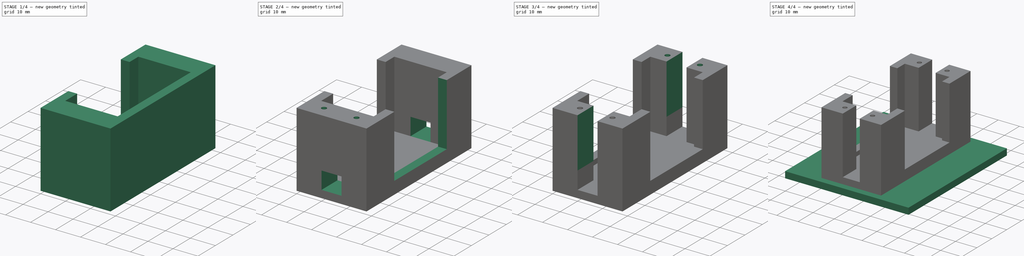
[diagram: build sequence overview — one tinted view per stage of 4, left to right]
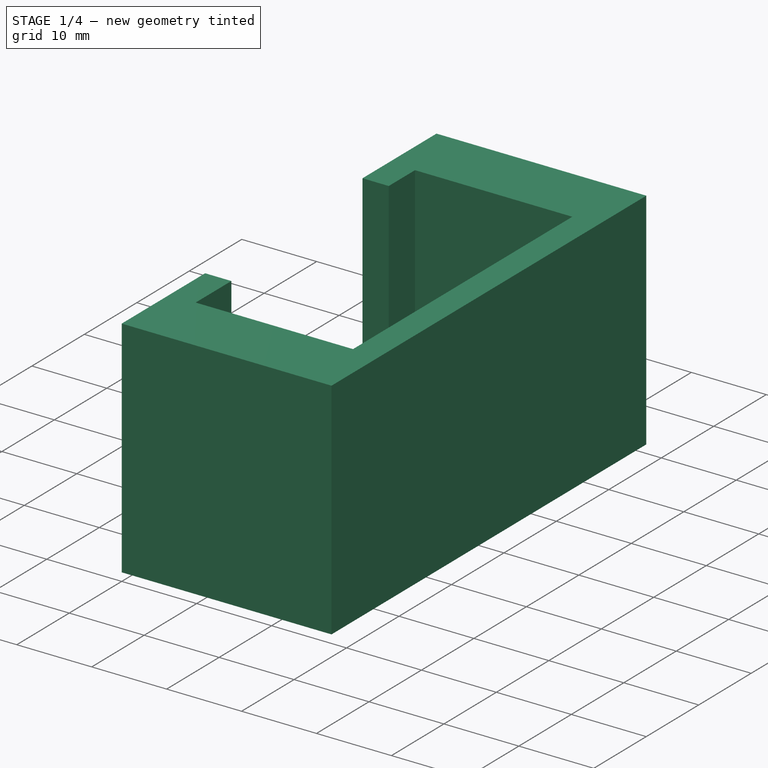
[diagram: stage 1 of 4 — iso view after this stage's code; geometry added in this stage tinted green]
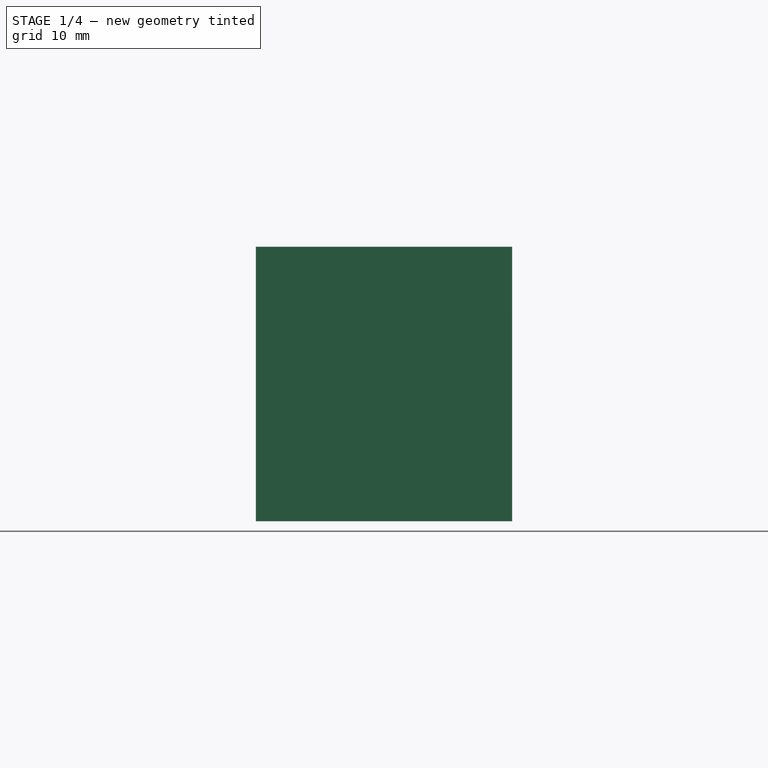
[diagram: stage 1 of 4 — front view after this stage's code; geometry added in this stage tinted green]
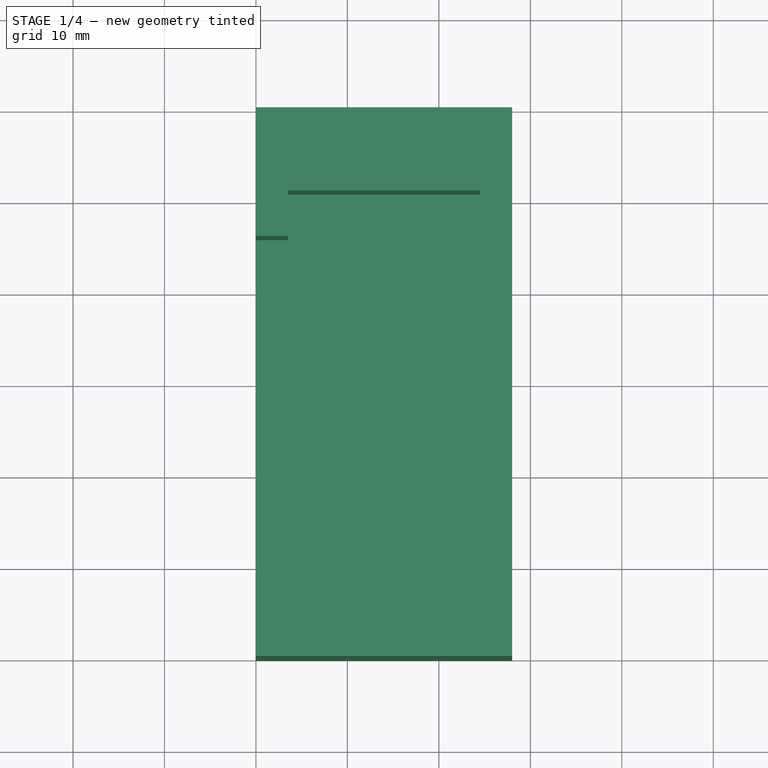
[diagram: stage 1 of 4 — top view after this stage's code; geometry added in this stage tinted green]
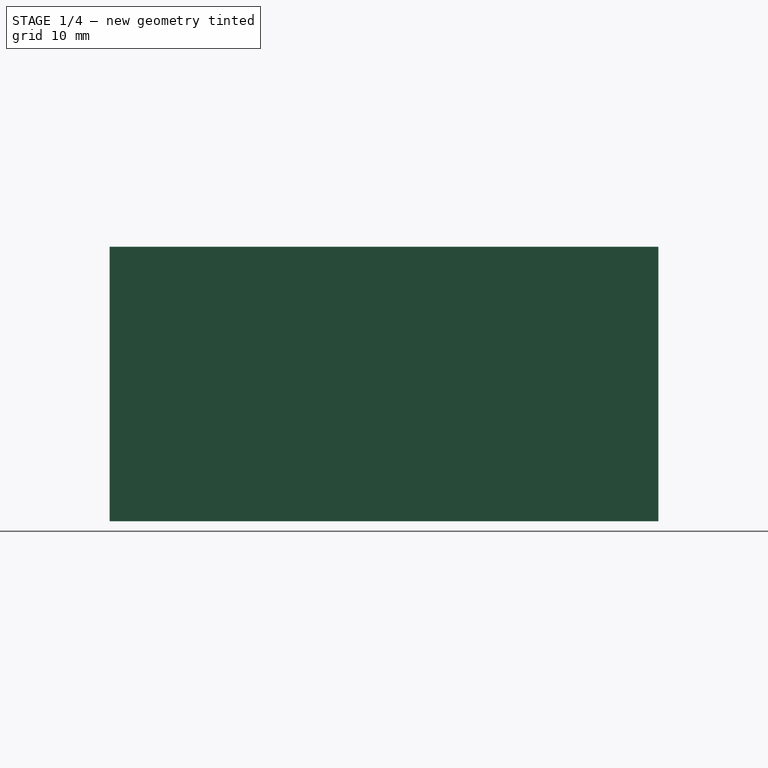
[diagram: stage 1 of 4 — right view after this stage's code; geometry added in this stage tinted green]
FCSTD DOCUMENT  (FreeCAD 0.19R19409 (Git))
Label: supp_servo_base_v1
License: All rights reserved
LicenseURL: http://en.wikipedia.org/wiki/All_rights_reserved
objects: Sketcher::SketchObject×11, App::MeasureDistance×10, PartDesign::Pocket×7, PartDesign::Pad×4, App::DocumentObjectGroup×2, PartDesign::CoordinateSystem×1, App::FeaturePython×1, PartDesign::Body×1, App::Part×1, Spreadsheet::Sheet×1
note: 35 computed .brp shape members not serialized (recipe doc carries the construction recipe); baked Part::Feature solids carry a one-line shape summary decoded from their .brp

FEATURE [Sketcher::SketchObject] Sketch
  MapMode = 5
  Support = -> [XY_Plane]
  sketch-geometry (4):
    g0: LineSegment StartX=0 StartY=0 StartZ=0 EndX=28 EndY=0 EndZ=0
    g1: LineSegment StartX=28 StartY=0 StartZ=0 EndX=28 EndY=60 EndZ=0
    g2: LineSegment StartX=28 StartY=60 StartZ=0 EndX=0 EndY=60 EndZ=0
    g3: LineSegment StartX=0 StartY=60 StartZ=0 EndX=0 EndY=0 EndZ=0
  constraints (11):
    c: Coincident(g0,g1)
    c: Coincident(g1,g2)
    c: Coincident(g2,g3)
    c: Coincident(g3,g0)
    c: Horizontal(g0)
    c: Horizontal(g2)
    c: Vertical(g1)
    c: Vertical(g3)
    c: Coincident(g0,g-1)
    c: DistanceY(g3,g3) = 60
    c: DistanceX(g0,g0) = 28
FEATURE [PartDesign::Pad] Pad
  Length = 30
  Length2 = 100
  Profile = -> Sketch
  Type = 0
FEATURE [Sketcher::SketchObject] Sketch001
  ExternalGeometry = -> [Pad]
  MapMode = 5
  Placement = pos=(0,0,30) rot=(0,0,1;0rad)
  Support = -> [Pad]
  sketch-geometry (12):
    g0: GeomPoint X=12.5 Y=60 Z=0
    g1: GeomPoint X=12.5 Y=0 Z=0
    g2: GeomPoint X=12.5 Y=30 Z=0
    g3: GeomPoint X=12.5 Y=50.9 Z=0
    g4: GeomPoint X=13.5 Y=9.1 Z=0
    g5: LineSegment StartX=3.5 StartY=9.1 StartZ=0 EndX=24.5 EndY=9.1 EndZ=0
    g6: LineSegment StartX=24.5 StartY=9.1 StartZ=0 EndX=24.5 EndY=50.9 EndZ=0
    g7: LineSegment StartX=24.5 StartY=50.9 StartZ=0 EndX=3.5 EndY=50.9 EndZ=0
    g8: LineSegment StartX=3.5 StartY=50.9 StartZ=0 EndX=3.5 EndY=9.1 EndZ=0
    g9: GeomPoint X=13.5 Y=9.1 Z=0
    g10: GeomPoint X=0 Y=9.5 Z=0
    g11: GeomPoint X=28 Y=9.5 Z=0
  constraints (25):
    c: PointOnObject(g0,g-3)
    c: DistanceX(g-3,g0) = 12.5
    c: PointOnObject(g1,g-4)
    c: DistanceX(g1,g-1) = -12.5
    c: DistanceY(g1,g2) = 30
    c: DistanceY(g3,g0) = 9.1
    c: DistanceY(g1,g4) = 9.1
    c: Coincident(g5,g6)
    c: Coincident(g6,g7)
    c: Coincident(g7,g8)
    c: Coincident(g8,g5)
    c: Horizontal(g5)
    c: Horizontal(g7)
    c: Vertical(g6)
    c: Vertical(g8)
    c: DistanceX(g5,g5) = 21
    c: DistanceY(g6,g6) = 41.8
    c: PointOnObject(g9,g5)
    c: DistanceX(g5,g9) = 10
    c: Coincident(g9,g4)
    c: PointOnObject(g10,g-5)
    c: DistanceY(g-1,g10) = 9.5
    c: DistanceX(g10,g5) = 3.5
    c: PointOnObject(g11,g-6)
    c: DistanceY(g-6,g11) = 9.5
FEATURE [PartDesign::Pocket] Pocket
  BaseFeature = -> Pad
  Length = 27
  Length2 = 100
  Profile = -> Sketch001
  Type = 0
FEATURE [Sketcher::SketchObject] Sketch002
  ExternalGeometry = -> [Pocket]
  MapMode = 5
  Placement = pos=(0,0,30) rot=(0,0,1;0rad)
  Support = -> [Pocket]
  sketch-geometry (4):
    g0: LineSegment StartX=3e-16 StartY=45.9 StartZ=0 EndX=3.5 EndY=45.9 EndZ=0
    g1: LineSegment StartX=3.5 StartY=45.9 StartZ=0 EndX=3.5 EndY=15.9 EndZ=0
    g2: LineSegment StartX=3.5 StartY=15.9 StartZ=0 EndX=4e-16 EndY=15.9 EndZ=0
    g3: LineSegment StartX=3e-16 StartY=15.9 StartZ=0 EndX=3e-16 EndY=45.9 EndZ=0
  constraints (12):
    c: Coincident(g0,g1)
    c: Coincident(g1,g2)
    c: Coincident(g2,g3)
    c: Coincident(g3,g0)
    c: Horizontal(g0)
    c: Horizontal(g2)
    c: Vertical(g1)
    c: Vertical(g3)
    c: PointOnObject(g0,g-4)
    c: DistanceY(g0,g-4) = 5
    c: DistanceX(g0,g0) = 3.5
    c: DistanceY(g1,g1) = 30
FEATURE [Sketcher::SketchObject] Sketch003
  ExternalGeometry = -> [Pocket]
  MapMode = 5
  Placement = pos=(0,0,30) rot=(0,0,1;0rad)
  Support = -> [Pocket]
  sketch-geometry (4):
    g0: LineSegment StartX=24.5 StartY=45.9 StartZ=0 EndX=28 EndY=45.9 EndZ=0
    g1: LineSegment StartX=28 StartY=45.9 StartZ=0 EndX=28 EndY=15.9 EndZ=0
    g2: LineSegment StartX=28 StartY=15.9 StartZ=0 EndX=24.5 EndY=15.9 EndZ=0
    g3: LineSegment StartX=24.5 StartY=15.9 StartZ=0 EndX=24.5 EndY=45.9 EndZ=0
  constraints (12):
    c: Coincident(g0,g1)
    c: Coincident(g1,g2)
    c: Coincident(g2,g3)
    c: Coincident(g3,g0)
    c: Horizontal(g0)
    c: Horizontal(g2)
    c: Vertical(g1)
    c: Vertical(g3)
    c: PointOnObject(g0,g-4)
    c: DistanceY(g1,g1) = 30
    c: DistanceY(g0,g-4) = 5
    c: DistanceX(g0,g0) = 3.5
FEATURE [PartDesign::Pocket] Pocket001
  BaseFeature = -> Pocket
  Length = 25
  Length2 = 100
  Profile = -> Sketch002
  Type = 0
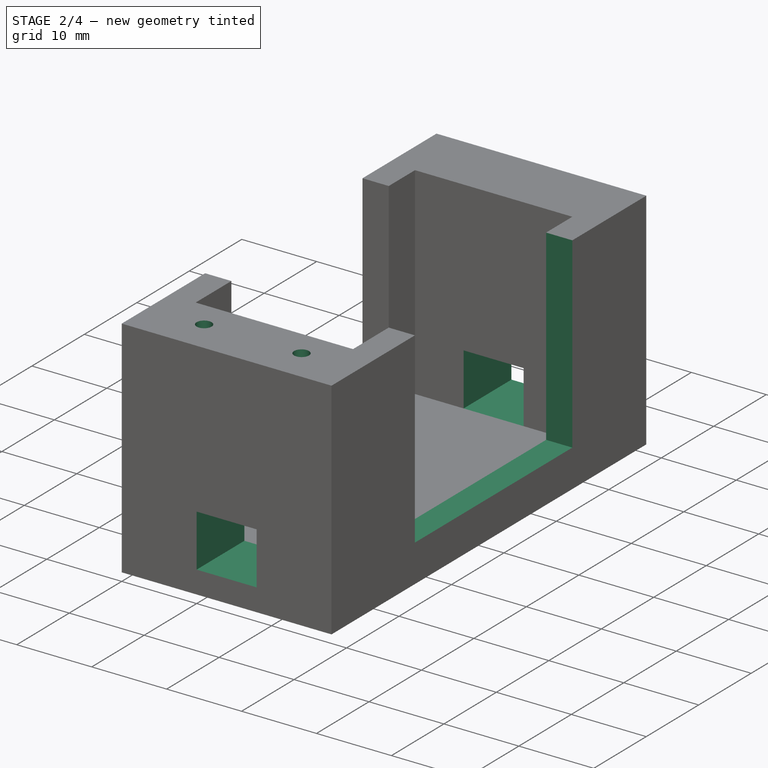
[diagram: stage 2 of 4 — iso view after this stage's code; geometry added in this stage tinted green]
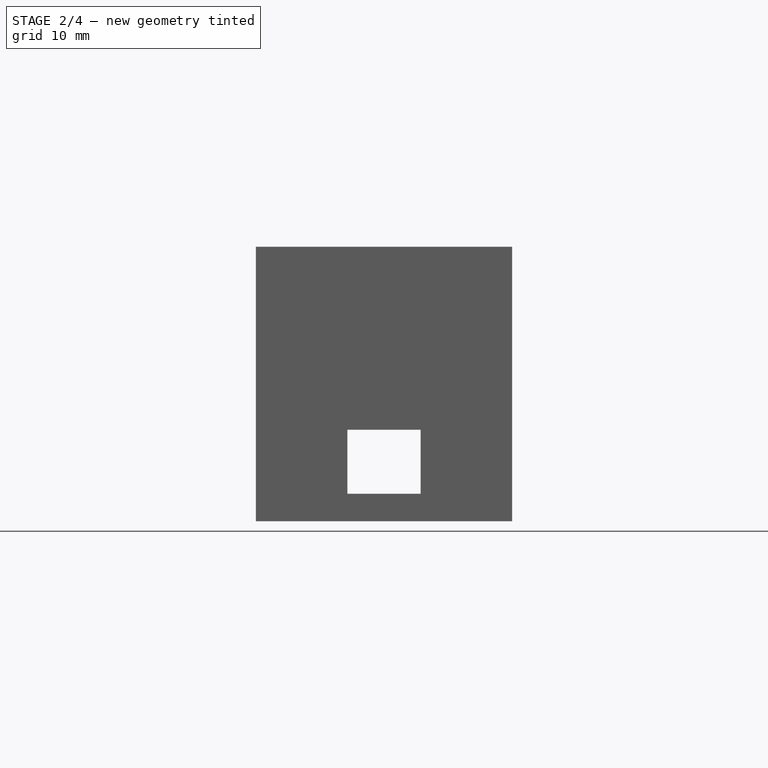
[diagram: stage 2 of 4 — front view after this stage's code; geometry added in this stage tinted green]
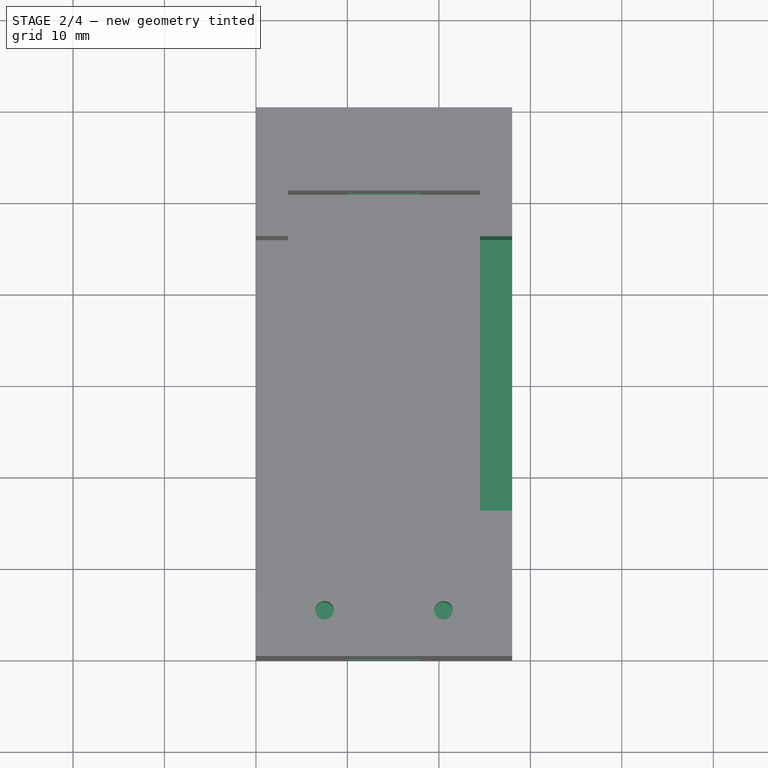
[diagram: stage 2 of 4 — top view after this stage's code; geometry added in this stage tinted green]
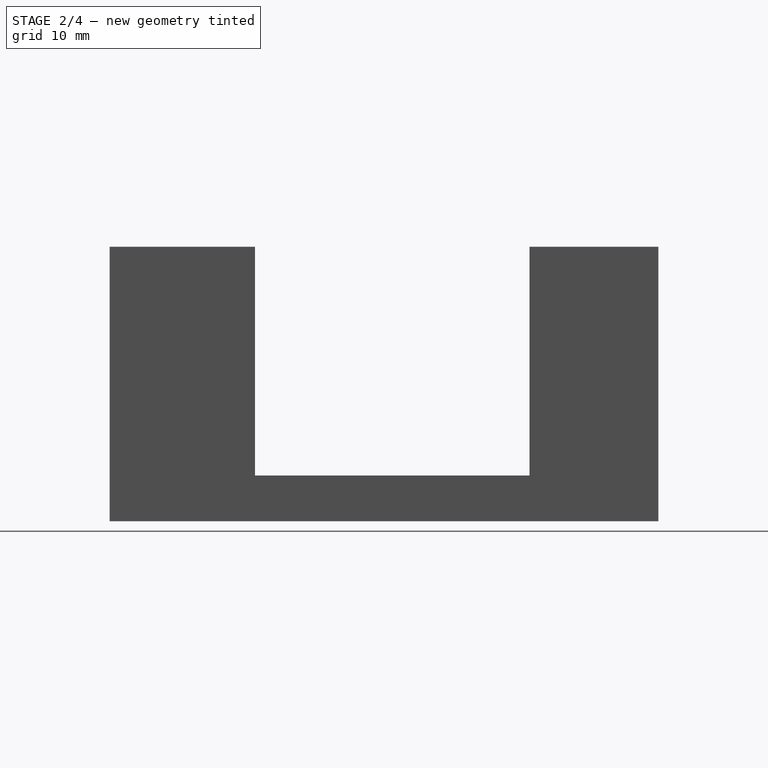
[diagram: stage 2 of 4 — right view after this stage's code; geometry added in this stage tinted green]
FEATURE [PartDesign::Pocket] Pocket002
  BaseFeature = -> Pocket001
  Length = 25
  Length2 = 100
  Profile = -> Sketch003
  Type = 0
FEATURE [Sketcher::SketchObject] Sketch006
  ExternalGeometry = -> [Pocket002]
  MapMode = 5
  Placement = pos=(0,60,0) rot=(0,0.707107,0.707107;3.14159rad)
  sketch-geometry (4):
    g0: LineSegment StartX=-18 StartY=10 StartZ=0 EndX=-10 EndY=10 EndZ=0
    g1: LineSegment StartX=-10 StartY=10 StartZ=0 EndX=-10 EndY=3 EndZ=0
    g2: LineSegment StartX=-10 StartY=3 StartZ=0 EndX=-18 EndY=3 EndZ=0
    g3: LineSegment StartX=-18 StartY=3 StartZ=0 EndX=-18 EndY=10 EndZ=0
  constraints (11):
    c: Coincident(g0,g1)
    c: Coincident(g1,g2)
    c: Coincident(g2,g3)
    c: Coincident(g3,g0)
    c: Horizontal(g0)
    c: Horizontal(g2)
    c: Vertical(g1)
    c: Vertical(g3)
    c: DistanceX(g2,g2) = 8
    c: DistanceY(g1,g1) = 7
    c: DistanceX(g-3,g2) = 6.5
FEATURE [PartDesign::Pocket] Pocket005
  BaseFeature = -> Pocket002
  Length = 5
  Length2 = 100
  Profile = -> Sketch006
  Type = 1
FEATURE [Sketcher::SketchObject] Sketch007
  ExternalGeometry = -> [Pocket005]
  MapMode = 5
  Placement = pos=(0,0,30) rot=(0,0,1;0rad)
  Support = -> [Pocket005]
  sketch-geometry (4):
    g0: GeomPoint X=0 Y=5 Z=0
    g1: GeomPoint X=28 Y=5 Z=0
    g2: Circle CenterX=7.5 CenterY=5 CenterZ=0 NormalX=0 NormalY=0 NormalZ=1 AngleXU=0 Radius=1
    g3: Circle CenterX=20.5 CenterY=5 CenterZ=0 NormalX=0 NormalY=0 NormalZ=1 AngleXU=0 Radius=1
  constraints (8):
    c: PointOnObject(g0,g-2)
    c: DistanceY(g-1,g0) = 5
    c: PointOnObject(g1,g-3)
    c: DistanceY(g-3,g1) = 5
    c: Radius(g2) = 1
    c: Radius(g3) = 1
    c: DistanceX(g0,g2) = 7.5
    c: DistanceX(g3,g1) = 7.5
FEATURE [Sketcher::SketchObject] Sketch008
  ExternalGeometry = -> [Pocket005]
  MapMode = 5
  Placement = pos=(0,0,30) rot=(0,0,1;0rad)
  Support = -> [Pocket005]
  sketch-geometry (4):
    g0: GeomPoint X=0 Y=55 Z=0
    g1: GeomPoint X=28 Y=55 Z=0
    g2: Circle CenterX=7.5 CenterY=55 CenterZ=0 NormalX=0 NormalY=0 NormalZ=1 AngleXU=0 Radius=1
    g3: Circle CenterX=20.5 CenterY=55 CenterZ=0 NormalX=0 NormalY=0 NormalZ=1 AngleXU=0 Radius=1
  constraints (8):
    c: PointOnObject(g0,g-2)
    c: DistanceY(g0,g-3) = 5
    c: PointOnObject(g1,g-4)
    c: DistanceY(g1,g-4) = 5
    c: Radius(g2) = 1
    c: DistanceX(g0,g2) = 7.5
    c: Radius(g3) = 1
    c: DistanceX(g3,g1) = 7.5
FEATURE [PartDesign::Pocket] Pocket006
  BaseFeature = -> Pocket005
  Length = 7
  Length2 = 100
  Profile = -> Sketch007
  Type = 0
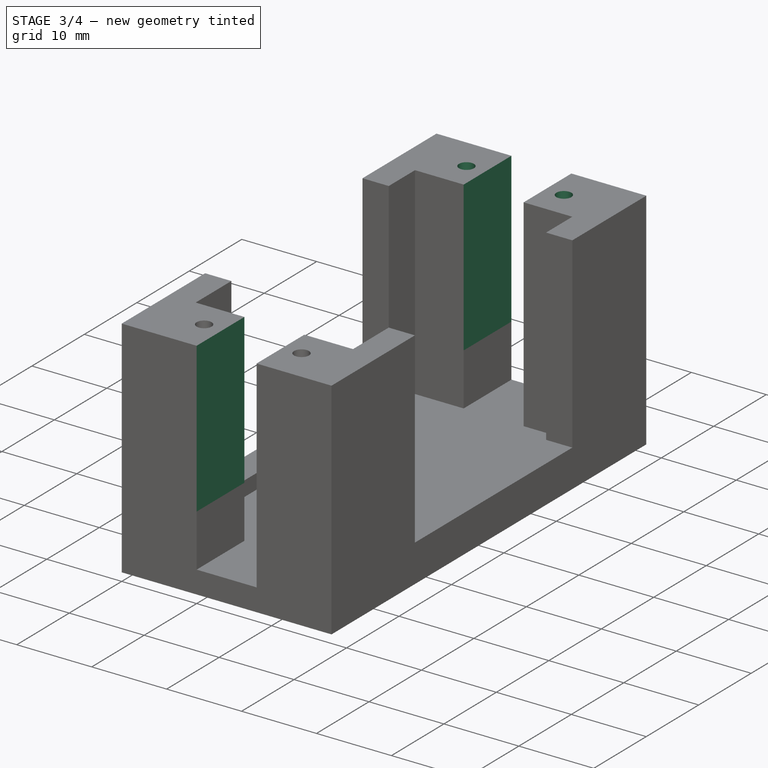
[diagram: stage 3 of 4 — iso view after this stage's code; geometry added in this stage tinted green]
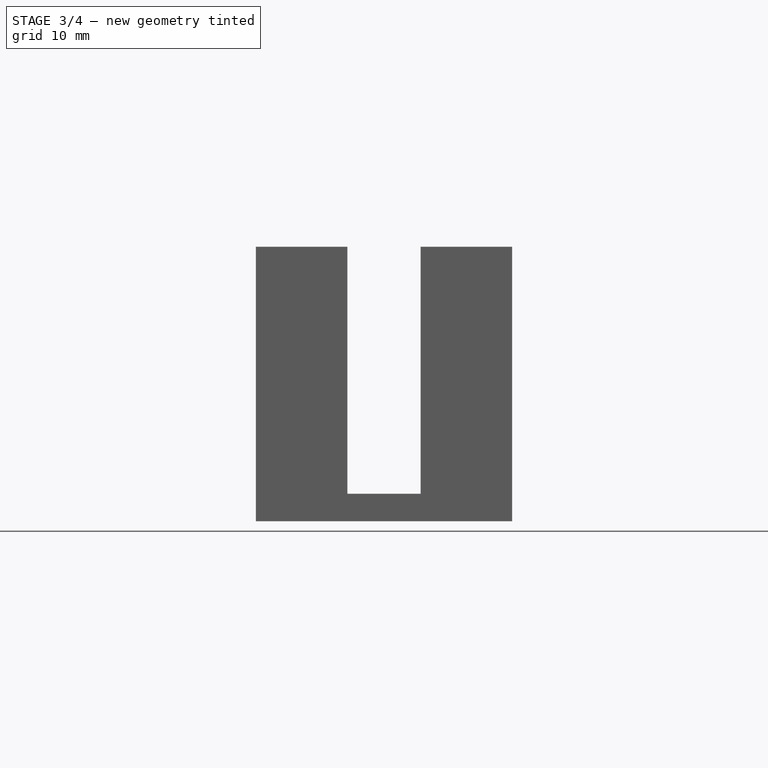
[diagram: stage 3 of 4 — front view after this stage's code; geometry added in this stage tinted green]
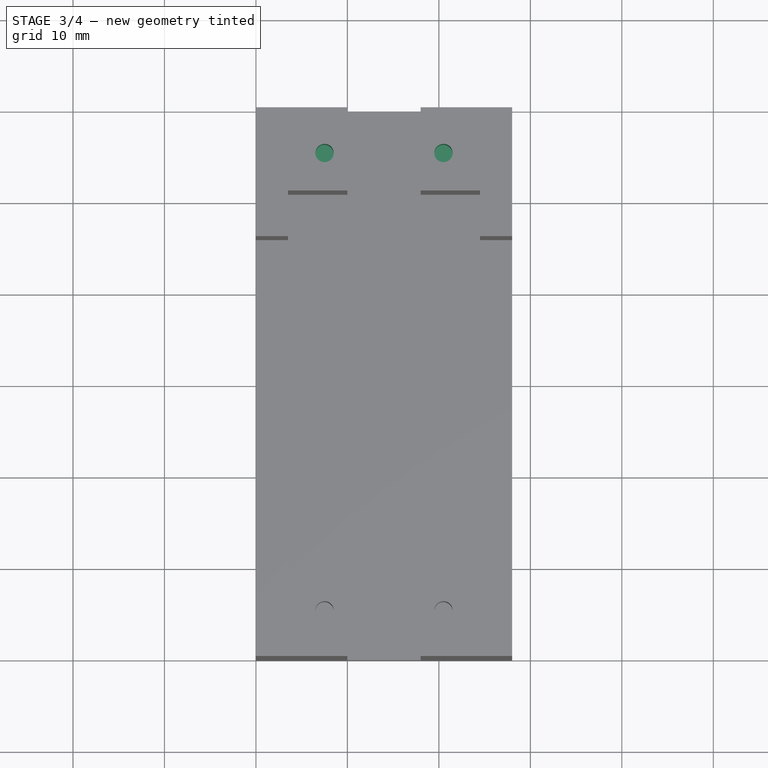
[diagram: stage 3 of 4 — top view after this stage's code; geometry added in this stage tinted green]
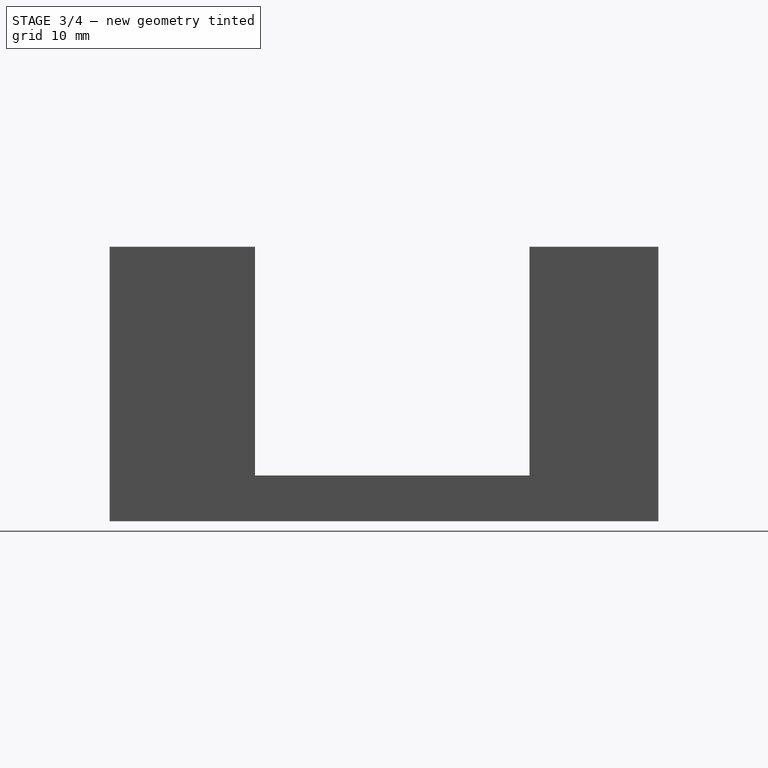
[diagram: stage 3 of 4 — right view after this stage's code; geometry added in this stage tinted green]
FEATURE [PartDesign::Pocket] Pocket007
  BaseFeature = -> Pocket006
  Length = 7
  Length2 = 100
  Profile = -> Sketch008
  Type = 0
FEATURE [App::DocumentObjectGroup] Parts
FEATURE [PartDesign::CoordinateSystem] LCS_Origin
  AttacherType = Attacher::AttachEngine3D
  MapMode = 2
  Support = -> [X_Axis001]
FEATURE [App::DocumentObjectGroup] Constraints
FEATURE [App::FeaturePython] Variables  # WARN: FeaturePython — macro-defined, semantics opaque (R4)
  Visibility1 = true
FEATURE [Sketcher::SketchObject] Sketch009
  ExternalGeometry = -> [Pocket007]
  MapMode = 5
  Placement = pos=(0,0,0) rot=(1,0,0;1.5708rad)
  Support = -> [Pocket007]
  sketch-geometry (4):
    g0: LineSegment StartX=10 StartY=30 StartZ=0 EndX=18 EndY=30 EndZ=0
    g1: LineSegment StartX=18 StartY=30 StartZ=0 EndX=18 EndY=10 EndZ=0
    g2: LineSegment StartX=18 StartY=10 StartZ=0 EndX=10 EndY=10 EndZ=0
    g3: LineSegment StartX=10 StartY=10 StartZ=0 EndX=10 EndY=30 EndZ=0
  constraints (11):
    c: Coincident(g0,g1)
    c: Coincident(g1,g2)
    c: Coincident(g2,g3)
    c: Coincident(g3,g0)
    c: Horizontal(g0)
    c: Horizontal(g2)
    c: Vertical(g1)
    c: Vertical(g3)
    c: Coincident(g2,g-3)
    c: DistanceX(g2,g2) = 8
    c: DistanceY(g3,g3) = 20
FEATURE [PartDesign::Pocket] Pocket008
  BaseFeature = -> Pocket007
  Length = 5
  Length2 = 100
  Profile = -> Sketch009
  Type = 1
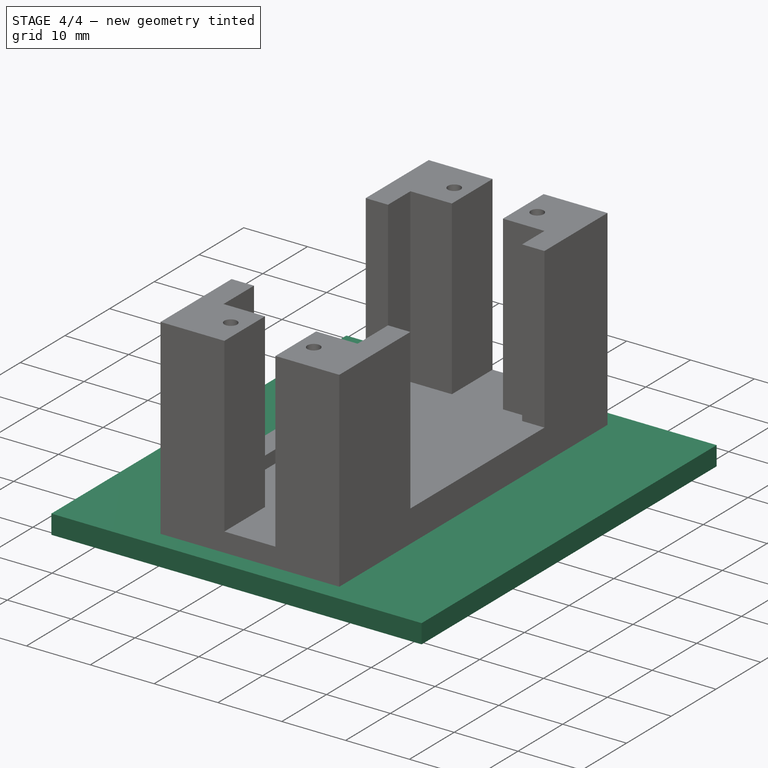
[diagram: stage 4 of 4 — iso view after this stage's code; geometry added in this stage tinted green]
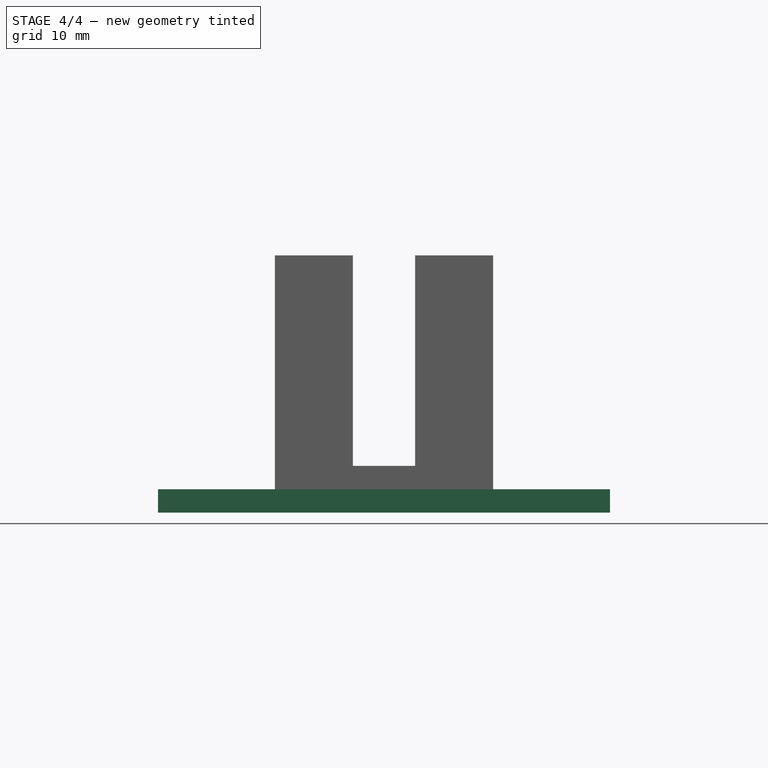
[diagram: stage 4 of 4 — front view after this stage's code; geometry added in this stage tinted green]
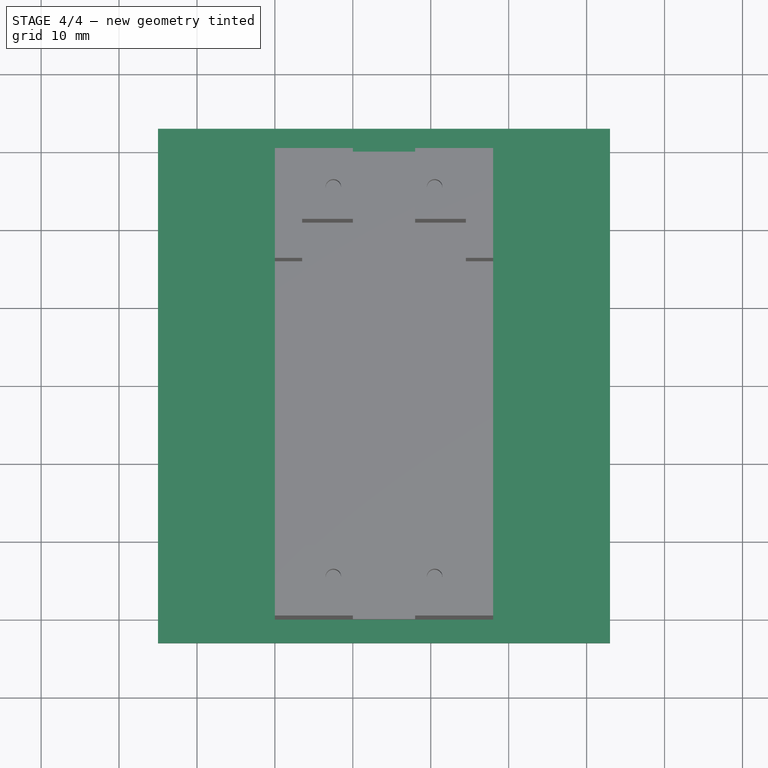
[diagram: stage 4 of 4 — top view after this stage's code; geometry added in this stage tinted green]
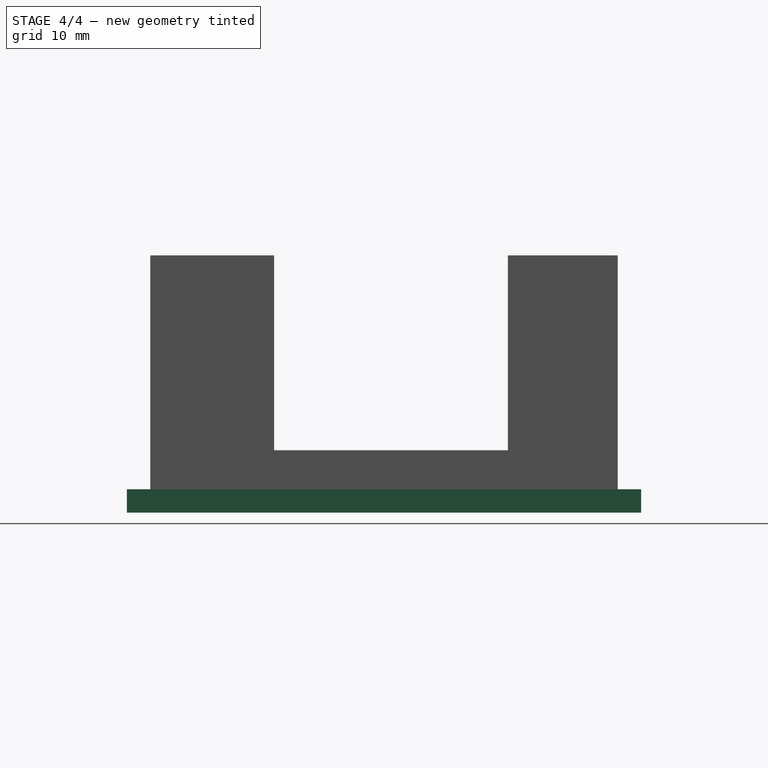
[diagram: stage 4 of 4 — right view after this stage's code; geometry added in this stage tinted green]
FEATURE [Sketcher::SketchObject] Sketch010
  ExternalGeometry = -> [Pocket008]
  MapMode = 5
  Placement = pos=(0,0,0) rot=(1,0,0;3.14159rad)
  Support = -> [Pocket008]
  sketch-geometry (10):
    g0: LineSegment StartX=-15 StartY=0 StartZ=0 EndX=43 EndY=0 EndZ=0
    g1: LineSegment StartX=43 StartY=0 StartZ=0 EndX=43 EndY=-60 EndZ=0
    g2: LineSegment StartX=43 StartY=-60 StartZ=0 EndX=-15 EndY=-60 EndZ=0
    g3: LineSegment StartX=-15 StartY=-60 StartZ=0 EndX=-15 EndY=0 EndZ=0
    g4: GeomPoint X=13.5 Y=0 Z=0
    g5: GeomPoint X=13.5 Y=-60 Z=0
    g6: LineSegment StartX=13.5 StartY=-60 StartZ=0 EndX=13.5 EndY=0 EndZ=0
    g7: GeomPoint X=43 Y=0 Z=0
    g8: GeomPoint X=-15 Y=0 Z=0
    g9: GeomPoint X=43 Y=-60 Z=0
  constraints (22):
    c: Coincident(g0,g1)
    c: Coincident(g1,g2)
    c: Coincident(g2,g3)
    c: Coincident(g3,g0)
    c: Horizontal(g0)
    c: Horizontal(g2)
    c: Vertical(g1)
    c: Vertical(g3)
    c: PointOnObject(g4,g-4)
    c: DistanceX(g-1,g4) = 13.5
    c: PointOnObject(g5,g-5)
    c: DistanceX(g-5,g5) = 13.5
    c: Coincident(g6,g5)
    c: Coincident(g6,g4)
    c: PointOnObject(g7,g-1)
    c: DistanceX(g-4,g7) = 15
    c: PointOnObject(g8,g-1)
    c: DistanceX(g8,g-1) = 15
    c: Coincident(g0,g8)
    c: Horizontal(g-5,g9)
    c: DistanceX(g-5,g9) = 15
    c: Coincident(g1,g9)
FEATURE [PartDesign::Pad] Pad001
  BaseFeature = -> Pocket008
  Length = 3
  Length2 = 100
  Profile = -> Sketch010
  Type = 0
FEATURE [Sketcher::SketchObject] Sketch011
  ExternalGeometry = -> [Pad001]
  MapMode = 5
  Placement = pos=(0,0,0) rot=(1,0,0;1.5708rad)
  Support = -> [Pad001]
  sketch-geometry (4):
    g0: LineSegment StartX=-15 StartY=0 StartZ=0 EndX=43 EndY=0 EndZ=0
    g1: LineSegment StartX=43 StartY=0 StartZ=0 EndX=43 EndY=-3 EndZ=0
    g2: LineSegment StartX=43 StartY=-3 StartZ=0 EndX=-15 EndY=-3 EndZ=0
    g3: LineSegment StartX=-15 StartY=-3 StartZ=0 EndX=-15 EndY=0 EndZ=0
  constraints (10):
    c: Coincident(g0,g1)
    c: Coincident(g1,g2)
    c: Coincident(g2,g3)
    c: Coincident(g3,g0)
    c: Horizontal(g0)
    c: Horizontal(g2)
    c: Vertical(g1)
    c: Vertical(g3)
    c: Coincident(g2,g-3)
    c: Coincident(g0,g-4)
FEATURE [Sketcher::SketchObject] Sketch012
  ExternalGeometry = -> [Pad001]
  MapMode = 5
  Placement = pos=(0,60,0) rot=(0,0.707107,0.707107;3.14159rad)
  Support = -> [Pad001]
  sketch-geometry (4):
    g0: LineSegment StartX=-43 StartY=0 StartZ=0 EndX=15 EndY=0 EndZ=0
    g1: LineSegment StartX=15 StartY=0 StartZ=0 EndX=15 EndY=-3 EndZ=0
    g2: LineSegment StartX=15 StartY=-3 StartZ=0 EndX=-43 EndY=-3 EndZ=0
    g3: LineSegment StartX=-43 StartY=-3 StartZ=0 EndX=-43 EndY=0 EndZ=0
  constraints (10):
    c: Coincident(g0,g1)
    c: Coincident(g1,g2)
    c: Coincident(g2,g3)
    c: Coincident(g3,g0)
    c: Horizontal(g0)
    c: Horizontal(g2)
    c: Vertical(g1)
    c: Vertical(g3)
    c: Coincident(g0,g-4)
    c: Coincident(g1,g-3)
FEATURE [PartDesign::Pad] Pad002
  BaseFeature = -> Pad001
  Length = 3
  Length2 = 100
  Profile = -> Sketch011
  Type = 0
FEATURE [PartDesign::Pad] Pad003
  BaseFeature = -> Pad002
  Length = 3
  Length2 = 100
  Profile = -> Sketch012
  Type = 0
FEATURE [PartDesign::Body] Body
  Group = -> [Sketch,Pad,Sketch001,Pocket,Sketch002,Sketch003,Pocket001,Pocket002,Sketch006,Pocket005,Sketch007,Sketch008,Pocket006,Pocket007,Sketch009,Pocket008,Sketch010,Pad001,Sketch011,Sketch012,Pad002,Pad003]
  Origin = -> Origin
  Tip = -> Pad003
FEATURE [App::Part] Model
  Group = -> [LCS_Origin,Constraints,Variables,Body]
  Origin = -> Origin001
  Type = Assembly4 Model
FEATURE [Spreadsheet::Sheet] Spreadsheet  label="Dimensions"
FEATURE [App::MeasureDistance] Distance002  label="Distance: 7,49 mm"
  Distance = 7.49152
  P1 = (24.5282,50.9414,30)
  P2 = (17.0367,50.9168,30)
FEATURE [App::MeasureDistance] Distance003  label="Distance: 7,51 mm"
  Distance = 7.50756
  P1 = (11,50.9277,30)
  P2 = (3.49245,50.9125,30)
FEATURE [App::MeasureDistance] Distance004  label="Distance: 21,00 mm"
  Distance = 20.9995
  P1 = (24.5011,9.10168,30)
  P2 = (3.50152,9.1,30)
FEATURE [App::MeasureDistance] Distance005  label="Distance: 41,80 mm"
  Distance = 41.8
  P1 = (24.5,9.1,30)
  P2 = (24.5,50.9,30)
FEATURE [App::MeasureDistance] Distance006  label="Distance: 3,50 mm"
  Distance = 3.49842
  P1 = (4e-16,15.9,30)
  P2 = (3.49842,15.9,30)
FEATURE [App::MeasureDistance] Distance007  label="Distance: 3,50 mm001"
  Distance = 3.50001
  P1 = (24.5,15.8953,30)
  P2 = (28,15.8886,30)
FEATURE [App::MeasureDistance] Distance008  label="Distance: 1,00 mm"
  Distance = 0.999548
  P1 = (10.0006,4.99474,30)
  P2 = (11,4.97583,30)
FEATURE [App::MeasureDistance] Distance009  label="Distance: 8,00 mm"
  Distance = 8
  P1 = (10,9.09941,30)
  P2 = (18,9.09475,30)
FEATURE [App::MeasureDistance] Distance  label="Distance: 10,00 mm"
  Distance = 10
  P1 = (0,59.9844,30)
  P2 = (10,60,30)
FEATURE [App::MeasureDistance] Distance010  label="Distance: 10,00 mm001"
  Distance = 9.99751
  P1 = (18.0025,60,30)
  P2 = (28,59.9929,30)
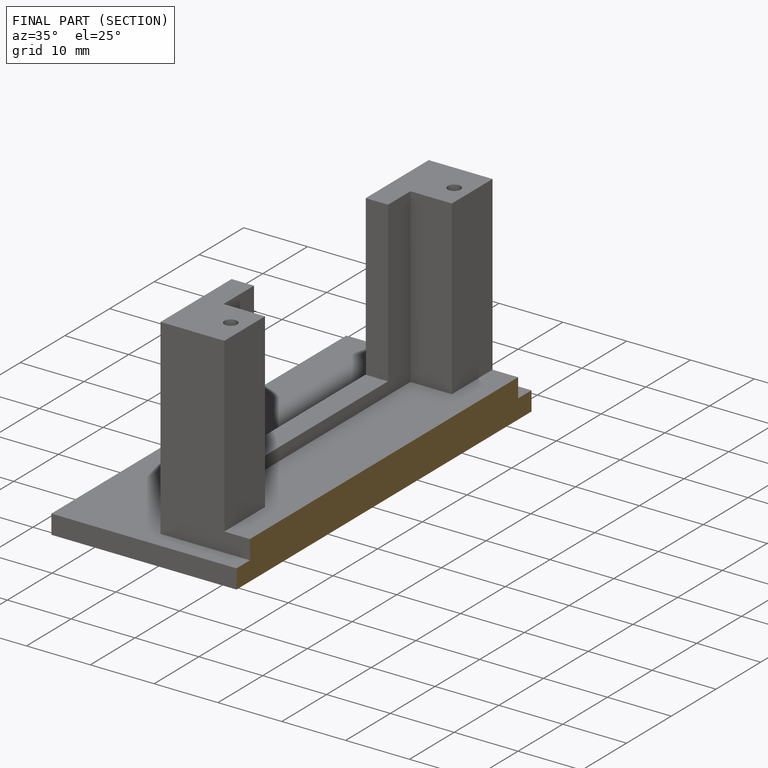
[diagram: finished part — half-section view (interior)]
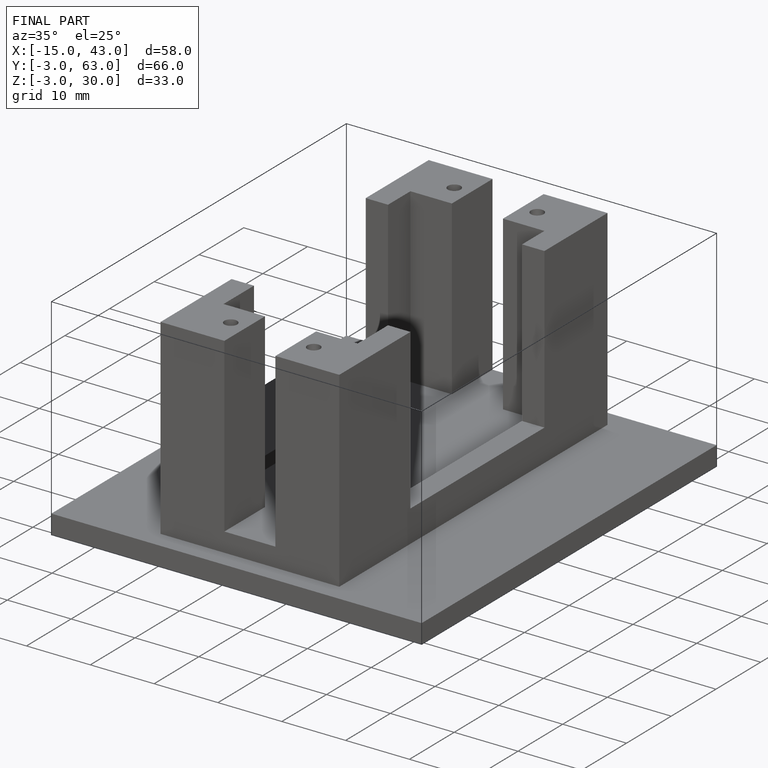
[diagram: finished part — iso view with bounding-box wireframe]
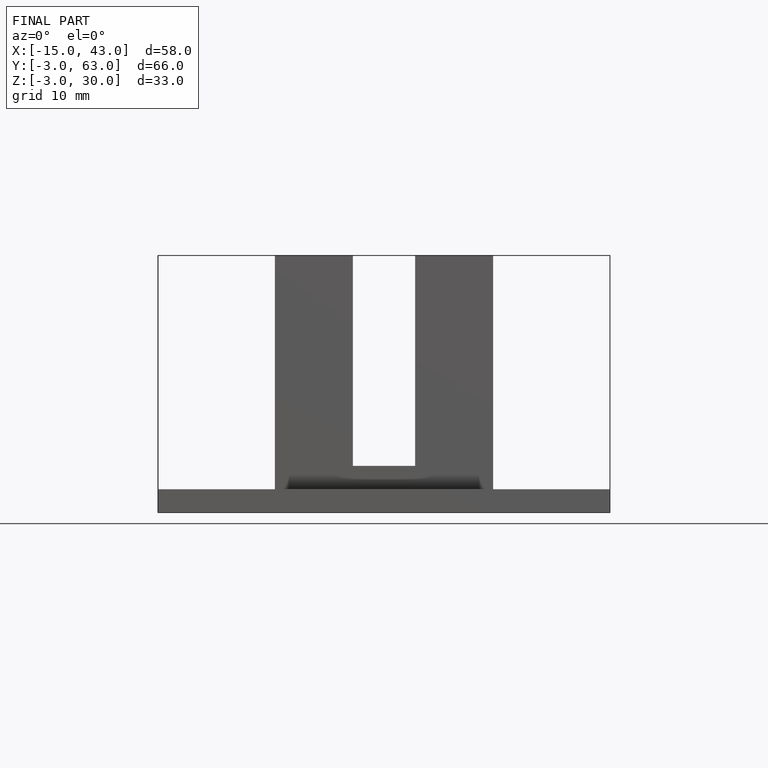
[diagram: finished part — front view with bounding-box wireframe]
